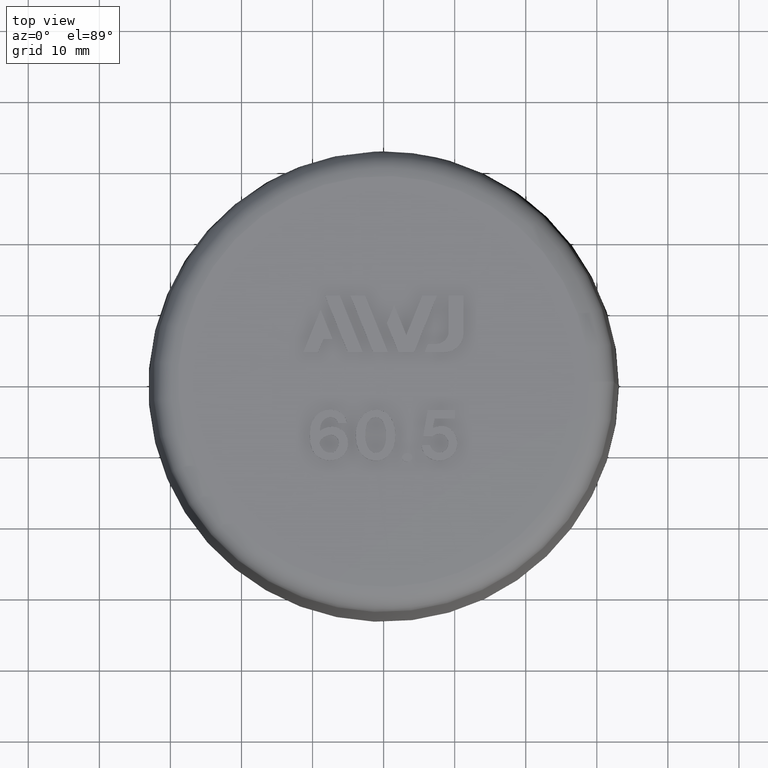
[diagram: clean part render]
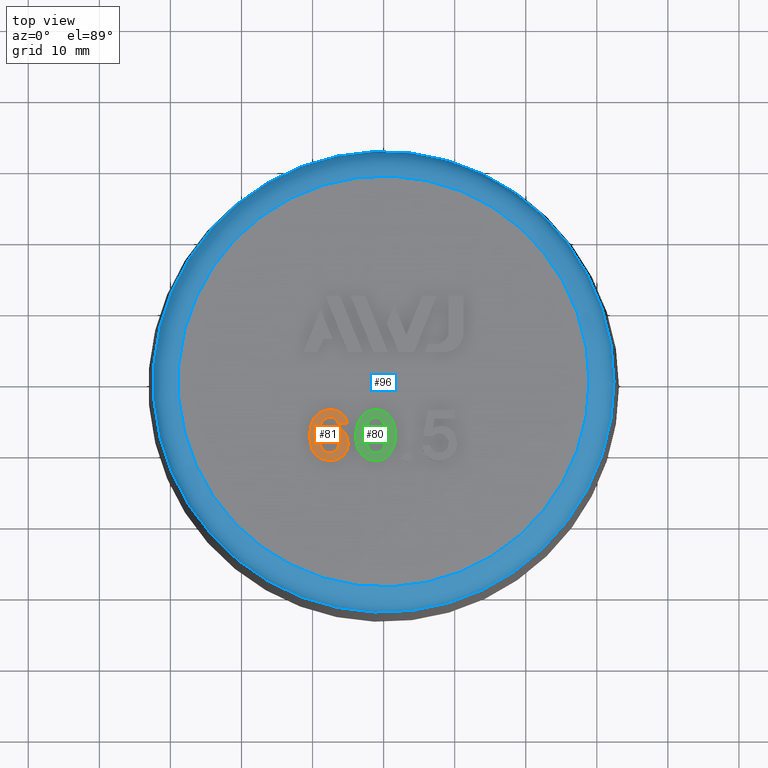
[diagram: same view with three faces highlighted in distinct colors, each labeled with its STEP entity id]
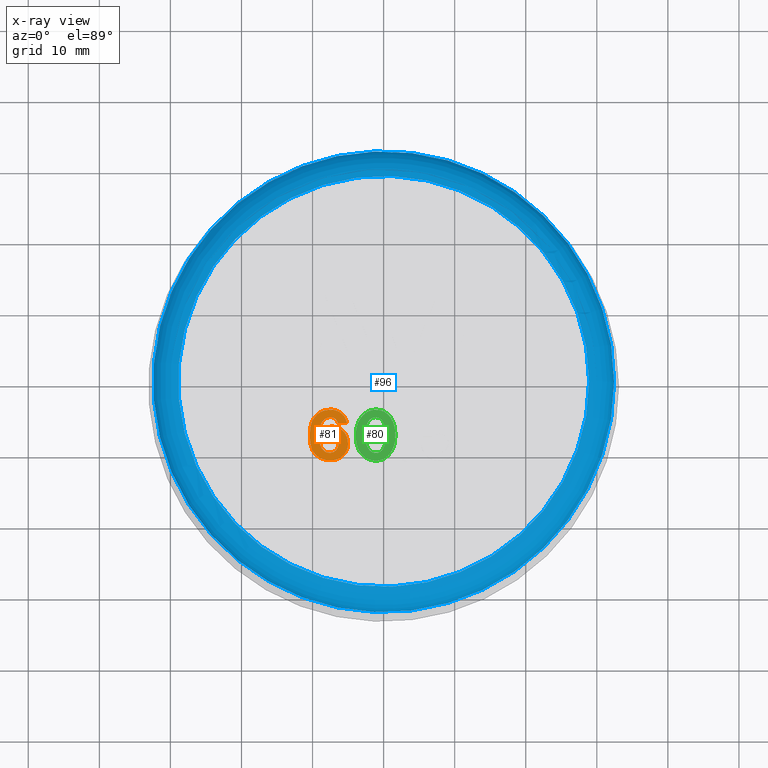
[diagram: x-ray of the same camera — body ghosted, the three highlighted faces saturated]
A machine part, top view with three faces highlighted in distinct colors.
The next image is the same camera in x-ray (body ghosted, the three faces saturated) — at least one of them is partly hidden behind the body in this view.
Their STEP definitions:

[orange] entity #81 — the highlighted planar face has unit normal (0, 0, -1).
#81 = ADVANCED_FACE( '', ( #164, #165 ), #166, .F. );
#164 = FACE_BOUND( '', #313, .T. );
#165 = FACE_OUTER_BOUND( '', #314, .T. );
#166 = PLANE( '', #315 );
#313 = EDGE_LOOP( '', ( #530, #531 ) );
#314 = EDGE_LOOP( '', ( #532, #533, #534, #535 ) );
#315 = AXIS2_PLACEMENT_3D( '', #536, #537, #538 );
#530 = ORIENTED_EDGE( '', *, *, #1095, .T. );
#531 = ORIENTED_EDGE( '', *, *, #1096, .T. );
#532 = ORIENTED_EDGE( '', *, *, #1097, .T. );
#533 = ORIENTED_EDGE( '', *, *, #1098, .T. );
#534 = ORIENTED_EDGE( '', *, *, #1099, .T. );
#535 = ORIENTED_EDGE( '', *, *, #1100, .T. );
#536 = CARTESIAN_POINT( '', ( -5.43771061688003, -5.08316551293116, 43.0000000000000 ) );
#537 = DIRECTION( '', ( 6.11138691238938E-017, 1.72477862658057E-019, -1.00000000000000 ) );
#538 = DIRECTION( '', ( -0.984562507785906, -0.175033334717495, -6.02006136205866E-017 ) );
#1095 = EDGE_CURVE( '', #1293, #1294, #1295, .T. );
#1096 = EDGE_CURVE( '', #1294, #1293, #1296, .T. );
#1097 = EDGE_CURVE( '', #1297, #1298, #1299, .T. );
#1098 = EDGE_CURVE( '', #1298, #1300, #1301, .T. );
#1099 = EDGE_CURVE( '', #1300, #1302, #1303, .T. );
#1100 = EDGE_CURVE( '', #1302, #1297, #1304, .T. );
#1293 = VERTEX_POINT( '', #1707 );
#1294 = VERTEX_POINT( '', #1708 );
#1295 = B_SPLINE_CURVE_WITH_KNOTS( '', 3, ( #1709, #1710, #1711, #1712, #1713, #1714 ), .UNSPECIFIED., .F., .F., ( 4, 2, 4 ), ( 0.000000000000000, 0.000587163251395138, 0.00117432650279028 ), .UNSPECIFIED. );
#1296 = B_SPLINE_CURVE_WITH_KNOTS( '', 3, ( #1715, #1716, #1717, #1718, #1719, #1720, #1721, #1722, #1723, #1724, #1725, #1726, #1727, #1728, #1729, #1730, #1731, #1732, #1733, #1734, #1735, #1736, #1737, #1738, #1739, #1740, #1741, #1742, #1743, #1744, #1745, #1746, #1747, #1748, #1749, #1750 ), .UNSPECIFIED., .F., .F., ( 4, 2, 2, 2, 2, 2, 2, 2, 2, 2, 2, 2, 2, 2, 2, 2, 2, 4 ), ( 0.000000000000000, 0.000431051933408774, 0.000862103866817548, 0.00129315580022632, 0.00172420773363509, 0.00215525966704387, 0.00258631160045264, 0.00301736353386141, 0.00344841546727018, 0.00387946740067895, 0.00431051933408773, 0.00474157126749650, 0.00517262320090527, 0.00560367513431404, 0.00581920110101843, 0.00603472706772282, 0.00646577900113159, 0.00689683093454037 ), .UNSPECIFIED. );
#1297 = VERTEX_POINT( '', #1751 );
#1298 = VERTEX_POINT( '', #1752 );
#1299 = B_SPLINE_CURVE_WITH_KNOTS( '', 2, ( #1753, #1754, #1755 ), .UNSPECIFIED., .F., .F., ( 3, 3 ), ( -2.00000000000000, -1.00000000000000 ), .UNSPECIFIED. );
#1300 = VERTEX_POINT( '', #1756 );
#1301 = B_SPLINE_CURVE_WITH_KNOTS( '', 2, ( #1757, #1758, #1759 ), .UNSPECIFIED., .F., .F., ( 3, 3 ), ( -1.00000000000000, 0.000000000000000 ), .UNSPECIFIED. );
#1302 = VERTEX_POINT( '', #1760 );
#1303 = B_SPLINE_CURVE_WITH_KNOTS( '', 2, ( #1761, #1762, #1763, #1764, #1765, #1766, #1767, #1768, #1769, #1770, #1771, #1772, #1773, #1774, #1775, #1776, #1777, #1778, #1779, #1780, #1781, #1782, #1783 ), .UNSPECIFIED., .F., .F., ( 3, 2, 2, 2, 2, 2, 2, 2, 2, 2, 2, 3 ), ( -16.0000000000000, -15.0000000000000, -14.0000000000000, -13.0000000000000, -12.0000000000000, -11.0000000000000, -10.0000000000000, -9.00000000000000, -8.00000000000000, -7.00000000000000, -6.00000000000000, -5.00000000000000 ), .UNSPECIFIED. );
#1304 = B_SPLINE_CURVE_WITH_KNOTS( '', 2, ( #1784, #1785, #1786, #1787, #1788, #1789, #1790 ), .UNSPECIFIED., .F., .F., ( 3, 2, 2, 3 ), ( -5.00000000000000, -4.00000000000000, -3.00000000000000, -2.00000000000000 ), .UNSPECIFIED. );
#1707 = CARTESIAN_POINT( '', ( -8.60270805481284, -9.55351796587379, 43.0000000000000 ) );
#1708 = CARTESIAN_POINT( '', ( -8.97762784090909, -8.46838427603421, 43.0000000000000 ) );
#1709 = CARTESIAN_POINT( '', ( -8.60270805481284, -9.55351796587379, 43.0000000000000 ) );
#1710 = CARTESIAN_POINT( '', ( -8.73081274489330, -9.40406249411325, 43.0000000000000 ) );
#1711 = CARTESIAN_POINT( '', ( -8.82862404678398, -9.23021744763371, 43.0000000000000 ) );
#1712 = CARTESIAN_POINT( '', ( -8.95105809289955, -8.86176990628511, 43.0000000000000 ) );
#1713 = CARTESIAN_POINT( '', ( -8.97762784090909, -8.66484892476915, 43.0000000000000 ) );
#1714 = CARTESIAN_POINT( '', ( -8.97762784090909, -8.46838427603421, 43.0000000000000 ) );
#1715 = CARTESIAN_POINT( '', ( -8.97762784090909, -8.46838427603421, 43.0000000000000 ) );
#1716 = CARTESIAN_POINT( '', ( -8.90618102034521, -8.34186386461901, 43.0000000000000 ) );
#1717 = CARTESIAN_POINT( '', ( -8.82086041315792, -8.22618545194544, 43.0000000000000 ) );
#1718 = CARTESIAN_POINT( '', ( -8.62135330795490, -8.01738655980961, 43.0000000000000 ) );
#1719 = CARTESIAN_POINT( '', ( -8.50810579044040, -7.92583137196689, 43.0000000000000 ) );
#1720 = CARTESIAN_POINT( '', ( -8.26596823797952, -7.77146592878538, 43.0000000000000 ) );
#1721 = CARTESIAN_POINT( '', ( -8.13481072482450, -7.70713870268212, 43.0000000000000 ) );
#1722 = CARTESIAN_POINT( '', ( -7.86649099379983, -7.60361442412210, 43.0000000000000 ) );
#1723 = CARTESIAN_POINT( '', ( -7.72876337097765, -7.56333664734214, 43.0000000000000 ) );
#1724 = CARTESIAN_POINT( '', ( -7.44035822069407, -7.52446593563151, 43.0000000000000 ) );
#1725 = CARTESIAN_POINT( '', ( -7.29371690211015, -7.52733955044099, 43.0000000000000 ) );
#1726 = CARTESIAN_POINT( '', ( -7.01130411907192, -7.59512150954951, 43.0000000000000 ) );
#1727 = CARTESIAN_POINT( '', ( -6.87937209509877, -7.65998723774208, 43.0000000000000 ) );
#1728 = CARTESIAN_POINT( '', ( -6.64917191521149, -7.83575263595403, 43.0000000000000 ) );
#1729 = CARTESIAN_POINT( '', ( -6.54821797326599, -7.94428059125179, 43.0000000000000 ) );
#1730 = CARTESIAN_POINT( '', ( -6.39656463412318, -8.18799056698902, 43.0000000000000 ) );
#1731 = CARTESIAN_POINT( '', ( -6.34603765653930, -8.32799094478732, 43.0000000000000 ) );
#1732 = CARTESIAN_POINT( '', ( -6.30458366946304, -8.61349460666069, 43.0000000000000 ) );
#1733 = CARTESIAN_POINT( '', ( -6.31183928159800, -8.76085313619226, 43.0000000000000 ) );
#1734 = CARTESIAN_POINT( '', ( -6.36225873450344, -9.04420183981687, 43.0000000000000 ) );
#1735 = CARTESIAN_POINT( '', ( -6.40427469684019, -9.18466076835050, 43.0000000000000 ) );
#1736 = CARTESIAN_POINT( '', ( -6.51347953060987, -9.45084522254657, 43.0000000000000 ) );
#1737 = CARTESIAN_POINT( '', ( -6.58732164582230, -9.57803365808041, 43.0000000000000 ) );
#1738 = CARTESIAN_POINT( '', ( -6.78087361564937, -9.79424576268497, 43.0000000000000 ) );
#1739 = CARTESIAN_POINT( '', ( -6.90122219633578, -9.88190199033632, 43.0000000000000 ) );
#1740 = CARTESIAN_POINT( '', ( -7.16499385997126, -10.0013082934495, 43.0000000000000 ) );
#1741 = CARTESIAN_POINT( '', ( -7.30946317023033, -10.0348242220045, 43.0000000000000 ) );
#1742 = CARTESIAN_POINT( '', ( -7.52464172679493, -10.0560285579175, 43.0000000000000 ) );
#1743 = CARTESIAN_POINT( '', ( -7.59669561505039, -10.0594205746643, 43.0000000000000 ) );
#1744 = CARTESIAN_POINT( '', ( -7.74197952603906, -10.0530109973369, 43.0000000000000 ) );
#1745 = CARTESIAN_POINT( '', ( -7.81501456061635, -10.0428995726299, 43.0000000000000 ) );
#1746 = CARTESIAN_POINT( '', ( -8.02599708264349, -9.99228454512737, 43.0000000000000 ) );
#1747 = CARTESIAN_POINT( '', ( -8.16081546117725, -9.92965203166560, 43.0000000000000 ) );
#1748 = CARTESIAN_POINT( '', ( -8.40030563888191, -9.76595316376352, 43.0000000000000 ) );
#1749 = CARTESIAN_POINT( '', ( -8.50749091378674, -9.66460463040423, 43.0000000000000 ) );
#1750 = CARTESIAN_POINT( '', ( -8.60270805481284, -9.55351796587379, 43.0000000000000 ) );
#1751 = CARTESIAN_POINT( '', ( -6.44126420454545, -5.91156609421603, 43.0000000000000 ) );
#1752 = CARTESIAN_POINT( '', ( -5.13217329545455, -5.91156609421603, 43.0000000000000 ) );
#1753 = CARTESIAN_POINT( '', ( -6.44126420454545, -5.91156609421603, 43.0000000000000 ) );
#1754 = CARTESIAN_POINT( '', ( -5.78671875000000, -5.91156609421603, 43.0000000000000 ) );
#1755 = CARTESIAN_POINT( '', ( -5.13217329545455, -5.91156609421603, 43.0000000000000 ) );
#1756 = CARTESIAN_POINT( '', ( -6.02704985388377, -4.43887285998563, 43.0000000000000 ) );
#1757 = CARTESIAN_POINT( '', ( -5.13217329545455, -5.91156609421603, 43.0000000000000 ) );
#1758 = CARTESIAN_POINT( '', ( -5.29580965909091, -4.99111154876149, 43.0000000000000 ) );
#1759 = CARTESIAN_POINT( '', ( -6.02704985388377, -4.43887285998563, 43.0000000000000 ) );
#1760 = CARTESIAN_POINT( '', ( -8.97762784090909, -7.00247518512512, 43.0000000000000 ) );
#1761 = CARTESIAN_POINT( '', ( -6.02704985388377, -4.43887285998563, 43.0000000000000 ) );
#1762 = CARTESIAN_POINT( '', ( -6.60490056818182, -4.00247518512512, 43.0000000000000 ) );
#1763 = CARTESIAN_POINT( '', ( -7.46399147727273, -4.00247518512512, 43.0000000000000 ) );
#1764 = CARTESIAN_POINT( '', ( -9.05944602272727, -4.00247518512512, 43.0000000000000 ) );
#1765 = CARTESIAN_POINT( '', ( -9.86033685328959, -5.27472363992464, 43.0000000000000 ) );
#1766 = CARTESIAN_POINT( '', ( -10.3685369318182, -6.08202063967058, 43.0000000000000 ) );
#1767 = CARTESIAN_POINT( '', ( -10.3889874955513, -7.54764437387641, 43.0000000000000 ) );
#1768 = CARTESIAN_POINT( '', ( -10.4094460227273, -9.01383882148876, 43.0000000000000 ) );
#1769 = CARTESIAN_POINT( '', ( -9.95880551715488, -9.79756143987554, 43.0000000000000 ) );
#1770 = CARTESIAN_POINT( '', ( -9.46853693181819, -10.6502024578524, 43.0000000000000 ) );
#1771 = CARTESIAN_POINT( '', ( -8.48262784090910, -10.9788388214888, 43.0000000000000 ) );
#1772 = CARTESIAN_POINT( '', ( -7.62762784090909, -11.2638388214888, 43.0000000000000 ) );
#1773 = CARTESIAN_POINT( '', ( -6.72891813977319, -11.0204382774311, 43.0000000000000 ) );
#1774 = CARTESIAN_POINT( '', ( -5.99126420454545, -10.8206570033069, 43.0000000000000 ) );
#1775 = CARTESIAN_POINT( '', ( -5.54196114297238, -10.2746289770897, 43.0000000000000 ) );
#1776 = CARTESIAN_POINT( '', ( -5.00944602272727, -9.62747518512512, 43.0000000000000 ) );
#1777 = CARTESIAN_POINT( '', ( -5.00944602272727, -8.84338427603421, 43.0000000000000 ) );
#1778 = CARTESIAN_POINT( '', ( -5.00944602272727, -8.19565700330694, 43.0000000000000 ) );
#1779 = CARTESIAN_POINT( '', ( -5.21195106374892, -7.71752010089472, 43.0000000000000 ) );
#1780 = CARTESIAN_POINT( '', ( -5.50035511363636, -7.03656609421603, 43.0000000000000 ) );
#1781 = CARTESIAN_POINT( '', ( -6.08535117009873, -6.71820089342018, 43.0000000000000 ) );
#1782 = CARTESIAN_POINT( '', ( -7.50490056818182, -5.94565700330694, 43.0000000000000 ) );
#1783 = CARTESIAN_POINT( '', ( -8.97762784090909, -7.00247518512512, 43.0000000000000 ) );
#1784 = CARTESIAN_POINT( '', ( -8.97762784090909, -7.00247518512512, 43.0000000000000 ) );
#1785 = CARTESIAN_POINT( '', ( -8.97762784090909, -6.11611154876148, 43.0000000000000 ) );
#1786 = CARTESIAN_POINT( '', ( -8.60862092069853, -5.63947761015617, 43.0000000000000 ) );
#1787 = CARTESIAN_POINT( '', ( -8.15944602272728, -5.05929336694330, 43.0000000000000 ) );
#1788 = CARTESIAN_POINT( '', ( -7.50490056818182, -5.05929336694330, 43.0000000000000 ) );
#1789 = CARTESIAN_POINT( '', ( -6.64580965909091, -5.05929336694331, 43.0000000000000 ) );
#1790 = CARTESIAN_POINT( '', ( -6.44126420454545, -5.91156609421603, 43.0000000000000 ) );

[blue] entity #96 — the highlighted toroidal blend (fillet) surface has major radius 28.9182 mm and minor (blend) radius 3.5 mm.
#96 = ADVANCED_FACE( '', ( #200, #201 ), #202, .T. );
#200 = FACE_OUTER_BOUND( '', #355, .T. );
#201 = FACE_OUTER_BOUND( '', #356, .T. );
#202 = TOROIDAL_SURFACE( '', #357, 28.9182014383200, 3.50000000000000 );
#355 = EDGE_LOOP( '', ( #674 ) );
#356 = EDGE_LOOP( '', ( #675 ) );
#357 = AXIS2_PLACEMENT_3D( '', #676, #677, #678 );
#674 = ORIENTED_EDGE( '', *, *, #1053, .F. );
#675 = ORIENTED_EDGE( '', *, *, #1117, .T. );
#676 = CARTESIAN_POINT( '', ( -2.38798238995364E-015, 0.000000000000000, 39.0000000000000 ) );
#677 = DIRECTION( '', ( -6.12303176911189E-017, 0.000000000000000, 1.00000000000000 ) );
#678 = DIRECTION( '', ( 1.00000000000000, 0.000000000000000, 6.12303176911189E-017 ) );
#1053 = EDGE_CURVE( '', #1212, #1212, #1213, .T. );
#1117 = EDGE_CURVE( '', #1331, #1331, #1332, .T. );
#1212 = VERTEX_POINT( '', #1499 );
#1213 = CIRCLE( '', #1500, 28.9182014383200 );
#1331 = VERTEX_POINT( '', #1884 );
#1332 = CIRCLE( '', #1885, 32.4176683713673 );
#1499 = CARTESIAN_POINT( '', ( 28.9182014383200, 0.000000000000000, 42.5000000000000 ) );
#1500 = AXIS2_PLACEMENT_3D( '', #2069, #2070, #2071 );
#1884 = CARTESIAN_POINT( '', ( 32.4176683713673, 0.000000000000000, 39.0610834225305 ) );
#1885 = AXIS2_PLACEMENT_3D( '', #2120, #2121, #2122 );
#2069 = CARTESIAN_POINT( '', ( -2.60228850187255E-015, 0.000000000000000, 42.5000000000000 ) );
#2070 = DIRECTION( '', ( -6.12303176911189E-017, 0.000000000000000, 1.00000000000000 ) );
#2071 = DIRECTION( '', ( 1.00000000000000, 0.000000000000000, 6.12303176911189E-017 ) );
#2120 = CARTESIAN_POINT( '', ( -2.39172254732084E-015, 0.000000000000000, 39.0610834225305 ) );
#2121 = DIRECTION( '', ( -6.12303176911189E-017, 0.000000000000000, 1.00000000000000 ) );
#2122 = DIRECTION( '', ( 1.00000000000000, 0.000000000000000, 6.12303176911189E-017 ) );

[green] entity #80 — the highlighted planar face has unit normal (0, 0, -1).
#80 = ADVANCED_FACE( '', ( #161, #162 ), #163, .F. );
#161 = FACE_OUTER_BOUND( '', #310, .T. );
#162 = FACE_BOUND( '', #311, .T. );
#163 = PLANE( '', #312 );
#310 = EDGE_LOOP( '', ( #525 ) );
#311 = EDGE_LOOP( '', ( #526 ) );
#312 = AXIS2_PLACEMENT_3D( '', #527, #528, #529 );
#525 = ORIENTED_EDGE( '', *, *, #1093, .T. );
#526 = ORIENTED_EDGE( '', *, *, #1094, .F. );
#527 = CARTESIAN_POINT( '', ( 0.823848906681646, -4.86873086614764, 43.0000000000000 ) );
#528 = DIRECTION( '', ( 6.11138691238938E-017, 1.72477862658057E-019, -1.00000000000000 ) );
#529 = DIRECTION( '', ( -0.984562507785906, -0.175033334717495, -6.02006136205866E-017 ) );
#1093 = EDGE_CURVE( '', #1289, #1289, #1290, .T. );
#1094 = EDGE_CURVE( '', #1291, #1291, #1292, .T. );
#1289 = VERTEX_POINT( '', #1671 );
#1290 = B_SPLINE_CURVE_WITH_KNOTS( '', 2, ( #1672, #1673, #1674, #1675, #1676, #1677, #1678, #1679, #1680, #1681, #1682, #1683, #1684, #1685, #1686, #1687, #1688 ), .UNSPECIFIED., .T., .F., ( 3, 2, 2, 2, 2, 2, 2, 2, 3 ), ( -8.00000000000000, -7.00000000000000, -6.00000000000000, -5.00000000000000, -4.00000000000000, -3.00000000000000, -2.00000000000000, -1.00000000000000, 0.000000000000000 ), .UNSPECIFIED. );
#1291 = VERTEX_POINT( '', #1689 );
#1292 = B_SPLINE_CURVE_WITH_KNOTS( '', 2, ( #1690, #1691, #1692, #1693, #1694, #1695, #1696, #1697, #1698, #1699, #1700, #1701, #1702, #1703, #1704, #1705, #1706 ), .UNSPECIFIED., .T., .F., ( 3, 2, 2, 2, 2, 2, 2, 2, 3 ), ( 0.000000000000000, 1.00000000000000, 2.00000000000000, 3.00000000000000, 4.00000000000000, 5.00000000000000, 6.00000000000000, 7.00000000000000, 8.00000000000000 ), .UNSPECIFIED. );
#1671 = CARTESIAN_POINT( '', ( -3.04842238185541, -10.3116909243037, 43.0000000000000 ) );
#1672 = CARTESIAN_POINT( '', ( -3.04842238185541, -10.3116909243037, 43.0000000000000 ) );
#1673 = CARTESIAN_POINT( '', ( -2.26853693181818, -11.1615660942160, 43.0000000000000 ) );
#1674 = CARTESIAN_POINT( '', ( -1.08217329545455, -11.1615660942160, 43.0000000000000 ) );
#1675 = CARTESIAN_POINT( '', ( 0.145099431818183, -11.1615660942160, 43.0000000000000 ) );
#1676 = CARTESIAN_POINT( '', ( 0.927393439756588, -10.1084780066066, 43.0000000000000 ) );
#1677 = CARTESIAN_POINT( '', ( 1.74055397727273, -9.01383882148876, 43.0000000000000 ) );
#1678 = CARTESIAN_POINT( '', ( 1.65261826764039, -7.27344456834865, 43.0000000000000 ) );
#1679 = CARTESIAN_POINT( '', ( 1.57691761363636, -5.77520245785240, 43.0000000000000 ) );
#1680 = CARTESIAN_POINT( '', ( 0.823848906681646, -4.86873086614764, 43.0000000000000 ) );
#1681 = CARTESIAN_POINT( '', ( 0.104190340909091, -4.00247518512512, 43.0000000000000 ) );
#1682 = CARTESIAN_POINT( '', ( -1.08217329545455, -4.00247518512512, 43.0000000000000 ) );
#1683 = CARTESIAN_POINT( '', ( -2.35035511363636, -4.00247518512512, 43.0000000000000 ) );
#1684 = CARTESIAN_POINT( '', ( -3.13744602272727, -5.05192973057967, 43.0000000000000 ) );
#1685 = CARTESIAN_POINT( '', ( -3.98671875000000, -6.18429336694330, 43.0000000000000 ) );
#1686 = CARTESIAN_POINT( '', ( -3.92086939702855, -7.92198462591204, 43.0000000000000 ) );
#1687 = CARTESIAN_POINT( '', ( -3.86399147727273, -9.42292973057967, 43.0000000000000 ) );
#1688 = CARTESIAN_POINT( '', ( -3.04842238185541, -10.3116909243037, 43.0000000000000 ) );
#1689 = CARTESIAN_POINT( '', ( -2.30944602272727, -9.15020245785239, 43.0000000000000 ) );
#1690 = CARTESIAN_POINT( '', ( -2.30944602272727, -9.15020245785239, 43.0000000000000 ) );
#1691 = CARTESIAN_POINT( '', ( -1.94126420454545, -9.96838427603421, 43.0000000000000 ) );
#1692 = CARTESIAN_POINT( '', ( -1.24540056818182, -10.0677933669433, 43.0000000000000 ) );
#1693 = CARTESIAN_POINT( '', ( -0.509446022727271, -10.1729297305797, 43.0000000000000 ) );
#1694 = CARTESIAN_POINT( '', ( -0.0724227367349126, -9.48289296322332, 43.0000000000000 ) );
#1695 = CARTESIAN_POINT( '', ( 0.267826704545456, -8.94565700330694, 43.0000000000000 ) );
#1696 = CARTESIAN_POINT( '', ( 0.342979747782173, -7.99058707884032, 43.0000000000000 ) );
#1697 = CARTESIAN_POINT( '', ( 0.431463068181819, -6.86611154876149, 43.0000000000000 ) );
#1698 = CARTESIAN_POINT( '', ( 0.0985789765245463, -6.05021916724856, 43.0000000000000 ) );
#1699 = CARTESIAN_POINT( '', ( -0.263991477272725, -5.16156609421603, 43.0000000000000 ) );
#1700 = CARTESIAN_POINT( '', ( -0.917393581038160, -5.08378012948205, 43.0000000000000 ) );
#1701 = CARTESIAN_POINT( '', ( -1.69580965909091, -4.99111154876149, 43.0000000000000 ) );
#1702 = CARTESIAN_POINT( '', ( -2.09695043946545, -5.57610852014102, 43.0000000000000 ) );
#1703 = CARTESIAN_POINT( '', ( -2.51399147727273, -6.18429336694330, 43.0000000000000 ) );
#1704 = CARTESIAN_POINT( '', ( -2.58935362977439, -7.17342161852759, 43.0000000000000 ) );
#1705 = CARTESIAN_POINT( '', ( -2.67762784090909, -8.33202063967058, 43.0000000000000 ) );
#1706 = CARTESIAN_POINT( '', ( -2.30944602272727, -9.15020245785239, 43.0000000000000 ) );